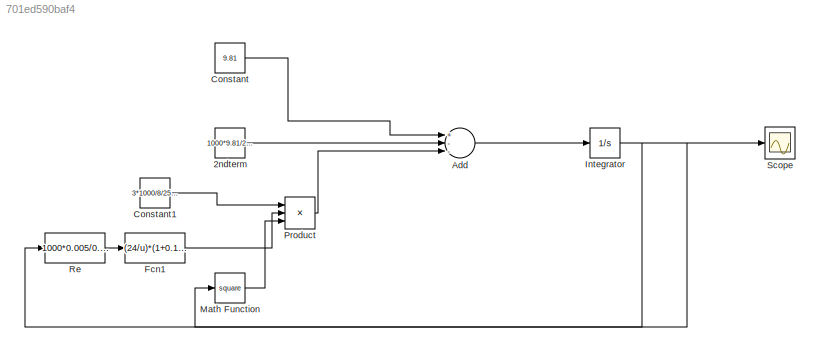
MODEL slx_701ed590baf4
KIND model
CONFIG AbsTol = auto
CONFIG EnableMultiTasking = off
CONFIG FixedStep = auto
CONFIG MaxStep = auto
CONFIG MinStep = auto
CONFIG RelTol = 1e-3
CONFIG SampleTimeConstraint = Unconstrained
CONFIG Solver = ode45
CONFIG SolverName = ode45
CONFIG StartTime = 0.0
CONFIG StopTime = 0.5
BLOCK [Constant] 2ndterm 
  Value = 1000*9.81/2500
BLOCK [Sum] Add
  InputSameDT = off
  Inputs = +--
  OutDataTypeStr = Inherit: Inherit via internal rule
  Ports = [3, 1]
  SaturateOnIntegerOverflow = off
BLOCK [Constant] Constant
  Value = 9.81
BLOCK [Constant] Constant1
  Value = 3*1000/8/2500/0.005
BLOCK [Fcn] Fcn1
  Expr = (24/u)*(1+0.18006*u^(0.6459))+0.4251/(1+6880.95/u)
BLOCK [Integrator] Integrator
  InitialCondition = 1e-5
  Ports = [1, 1]
BLOCK [Math] Math Function
  Operator = square
  Ports = [1, 1]
BLOCK [Product] Product
  InputSameDT = off
  Inputs = 3
  OutDataTypeStr = Inherit: Inherit via internal rule
  Ports = [3, 1]
  RndMeth = Floor
  SaturateOnIntegerOverflow = off
BLOCK [Fcn] Re
  Expr = 1000*0.005/0.001*u
BLOCK [Scope] Scope
  NumInputPorts = 1
  Ports = [1]
  ScopeSpecificationString = Simulink.scopes.TimeScopeBlockCfg('CurrentConfiguration', extmgr.ConfigurationSet(extmgr.Configuration('Core','General UI',true),extmgr.Configuration('Core','Source UI',true),extmgr.Configuration('Sources','WiredSimulink',true),extmgr.Configuration('Visuals','Time Domain',true,'SerializedDisplays',{struct('MinYLimReal','-0.08855','MaxYLimReal','0.79705','YLabelReal','','MinYLimMag','0.00000','MaxY...<+1330ch>
LINE 2ndterm :1 -> Add:2
LINE Add:1 -> Integrator:1
LINE Constant1:1 -> Product:1
LINE Constant:1 -> Add:1
LINE Fcn1:1 -> Product:2
NET Integrator:1 -> Math Function:1, Re:1, Scope:1
LINE Math Function:1 -> Product:3
LINE Product:1 -> Add:3
LINE Re:1 -> Fcn1:1
note: NET lines group one-source signal fan-out (src -> all destinations, sorted); 1:1 wires keep LINE
